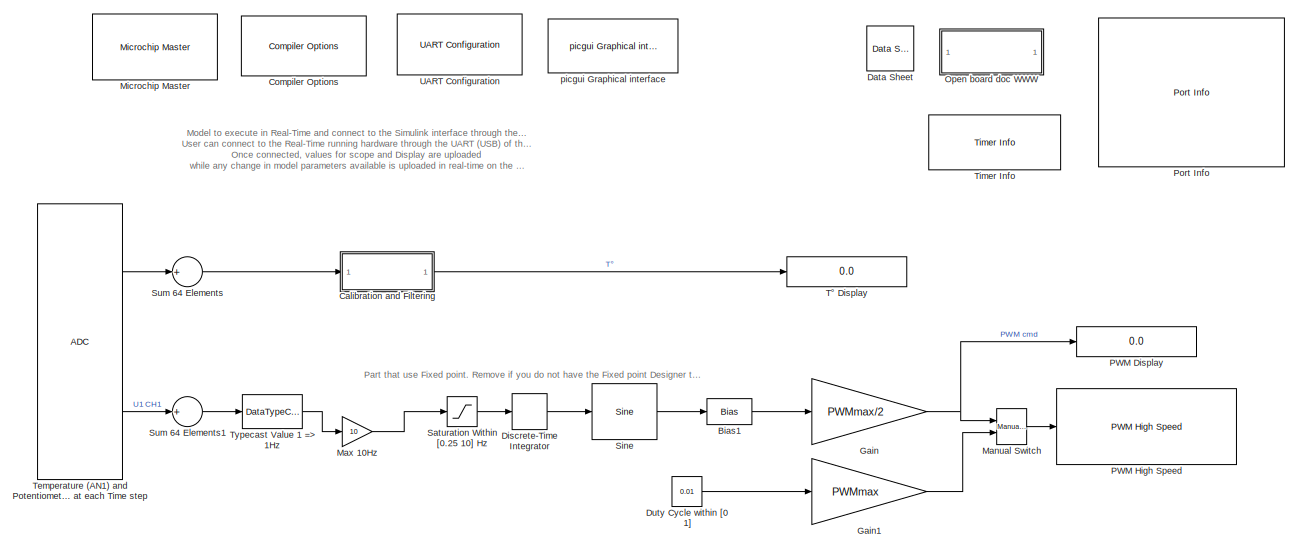
[diagram: root canvas - part 1/2, full width, top band]
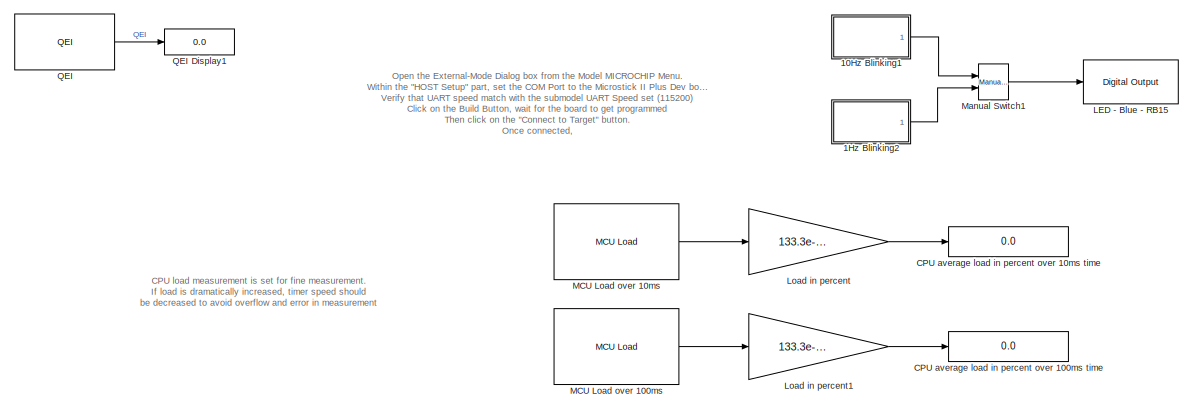
[diagram: root canvas - part 2/2, full width, bottom band]
MODEL slx_6a8ebd23b935
KIND model
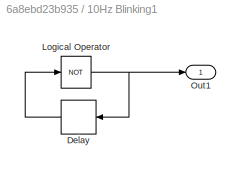
BLOCK [SubSystem] 10Hz Blinking1
  FunctionWithSeparateData = off
  MaskHideContents = off
  MinAlgLoopOccurrences = off
  Opaque = off
  Ports = [0, 1]
  PropExecContextOutsideSubsystem = off
  RTWSystemCode = Auto
  RequestExecContextInheritance = off
BLOCK [Delay] 10Hz Blinking1/Delay
  DelayLength = 1
  InitialCondition = 0
  InputPortMap = u0
  Ports = [1, 1]
  SampleTime = .05
BLOCK [Logic] 10Hz Blinking1/Logical Operator
  AllPortsSameDT = off
  Operator = NOT
  OutDataTypeStr = boolean
  Ports = [1, 1]
BLOCK [Outport] 10Hz Blinking1/Out1
  IconDisplay = Port number
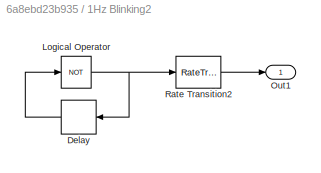
BLOCK [SubSystem] 1Hz Blinking2
  FunctionWithSeparateData = off
  MaskHideContents = off
  MinAlgLoopOccurrences = off
  Opaque = off
  Ports = [0, 1]
  PropExecContextOutsideSubsystem = off
  RTWSystemCode = Auto
  RequestExecContextInheritance = off
BLOCK [Delay] 1Hz Blinking2/Delay
  DelayLength = 1
  InitialCondition = 0
  InputPortMap = u0
  Ports = [1, 1]
  SampleTime = .5
BLOCK [Logic] 1Hz Blinking2/Logical Operator
  AllPortsSameDT = off
  Operator = NOT
  OutDataTypeStr = boolean
  Ports = [1, 1]
BLOCK [Outport] 1Hz Blinking2/Out1
  IconDisplay = Port number
BLOCK [RateTransition] 1Hz Blinking2/Rate Transition2
  Deterministic = off
  OutPortSampleTime = .05
BLOCK [Bias] Bias1
  Bias = 1
BLOCK [Display] CPU average load in percent over 100ms time
  Decimation = 1
  Format = long
  Lockdown = off
  Ports = [1]
BLOCK [Display] CPU average load in percent over 10ms time
  Decimation = 1
  Format = long
  Lockdown = off
  Ports = [1]
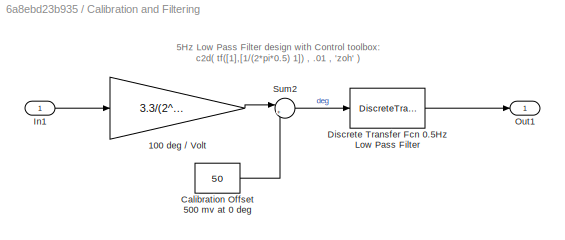
BLOCK [SubSystem] Calibration and Filtering
  FunctionWithSeparateData = off
  MaskHideContents = off
  MinAlgLoopOccurrences = off
  Opaque = off
  Ports = [1, 1]
  PropExecContextOutsideSubsystem = off
  RTWSystemCode = Auto
  RequestExecContextInheritance = off
BLOCK [Gain] Calibration and Filtering/100 deg // Volt 
  Gain = 3.3/(2^16) * 100
  OutDataTypeStr = single
  ParamDataTypeStr = Inherit: Inherit via internal rule
  SaturateOnIntegerOverflow = off
BLOCK [Constant] Calibration and Filtering/Calibration Offset 500 mv at 0 deg
  OutDataTypeStr = Inherit: Inherit via back propagation
  SampleTime = -1
  Value = 50
BLOCK [DiscreteTransferFcn] Calibration and Filtering/Discrete Transfer Fcn 0.5Hz Low Pass Filter
  Denominator = [1 -0.96907]
  InputPortMap = u0
  Numerator = [0.030928]
  Ports = [1, 1]
BLOCK [Inport] Calibration and Filtering/In1
  IconDisplay = Port number
BLOCK [Outport] Calibration and Filtering/Out1
  IconDisplay = Port number
BLOCK [Sum] Calibration and Filtering/Sum2
  AccumDataTypeStr = Inherit: Same as first input
  IconShape = round
  InputSameDT = off
  Inputs = |+-
  OutDataTypeStr = Inherit: Inherit via internal rule
  Ports = [2, 1]
  SaturateOnIntegerOverflow = off
BLOCK [Reference] Compiler Options  REF=MCHP_Blockset/System Configuration/Compiler Options
  AssemblyListing = on
  CMSIS_DSP = Dynamic Options
  CMSIS_DSP_TXT = Dynamic Options
  COMP_LIST = Dynamic Options
  COMP_LIST_TXT = xc16 - v1.61
  DEBUG_INFO = on
  DFP_LIST = Dynamic Options
  DFP_LIST_TXT = v 1.3.85
  HEAP_SIZE = 0
  LATEST_CMPLR = on
  MAGGREGATE = on
  MCHP_MASTERLINK = Microstick_II_PlusDevBoard_33EP128MC202_ExternalMode_R2012a/Microchip Master
  MCHP_MULTITHREAD_COMPILATION = on
  MCODE = is less than 32768 (faster)
  MCONST = in code memory
  MDATA = Can use all available memory
  MLARGEARRAY = off
  MPLAB_LINKLIB = default
  MPLAB_LINKLIB1 = default
  MSCALAR = Can use all available memory
  NO_EDS_WARN = on
  OMF = elf
  OPTIMIZATION_FLTO = on
  OPTIMIZATION_LEVEL = 2
  OPTIMIZATION_REORDER = off
  PRINT_STATISTICS = off
  PROCEDURAL_ABSTRACTION = off
  Ports = []
  Priority = 1
  ProduceHexOutput = on
  SourceBlock = MCHP_Blockset/System Configuration/Compiler Options
  UNROLL_LOOPS = off
  USE_64BIT_DOUBLE = off
  UseCustom_LinkerScript = off
BLOCK [Reference] Data Sheet  REF=MCHP_Blockset/System Info/Data Sheet
  AttributesFormatString = %<cpy_MCHP_Id>
  DOC_FileLastCheckTime = [0 0 0 0 0 0]
  DOC_MCHP_Id = 33FJ64MC802
  DOC_Type = datasheet
  MCHP_MASTERLINK = Microstick_II_PlusDevBoard_33EP128MC202_ExternalMode_R2012a/Microchip Master
  Ports = []
  SourceBlock = MCHP_Blockset/System Info/Data Sheet
  cpy_MCHP_Id = 33EP128MC202
BLOCK [DiscreteIntegrator] Discrete-Time Integrator
  ICPrevOutput = DiscIntNeverNeededParam
  ICPrevScaledInput = DiscIntNeverNeededParam
  IntegratorMethod = Accumulation: Forward Euler
  OutDataTypeStr = fixdt(0,16,16)
  Ports = [1, 1]
  SampleTime = .01
  gainval = 1
BLOCK [Constant] Duty Cycle within [0 1]
  OutDataTypeStr = fixdt(0,16,16)
  Value = 0.01
BLOCK [Gain] Gain
  Gain = PWMmax/2
  OutDataTypeStr = uint16
  ParamDataTypeStr = Inherit: Inherit via internal rule
  RndMeth = Simplest
  SaturateOnIntegerOverflow = off
BLOCK [Gain] Gain1
  Gain = PWMmax
  OutDataTypeStr = uint16
  ParamDataTypeStr = Inherit: Inherit via internal rule
  RndMeth = Simplest
  SaturateOnIntegerOverflow = off
BLOCK [Reference] LED - Blue - RB15  REF=MCHP_Blockset/Digital IO/Digital Output
  MCHP_MASTERLINK = Microstick_II_PlusDevBoard_33EP128MC202_ExternalMode_R2012a/Microchip Master
  ORDERING = None
  PACK = off
  PIN = [15]
  PORT = Dynamic Options
  PORT_TXT = B   [ 0 : 15 ]
  Ports = [1]
  READPREVIOUS = off
  SIMULTANEOUS = off
  SampleTime = -1
  SourceBlock = MCHP_Blockset/Digital IO/Digital Output
BLOCK [Gain] Load in percent
  Gain = 133.3e-9 / .01 * 100
  OutDataTypeStr = single
  OutMax = [20]
  OutMin = [0]
  ParamDataTypeStr = Inherit: Inherit from 'Gain'
  SaturateOnIntegerOverflow = off
BLOCK [Gain] Load in percent1
  Gain = 133.3e-9 / .1 * 100
  OutDataTypeStr = single
  OutMax = [20]
  OutMin = [0]
  ParamDataTypeStr = Inherit: Inherit from 'Gain'
  SaturateOnIntegerOverflow = off
BLOCK [Reference] MCU Load over 100ms  REF=MCHP_Blockset/Profiling/MCU Load
  Info = Timer 1:  Resol: 133.304768(ns)  -  Max: 8.73626(ms)
  MCHP_COMPILED_INFO = CompiledSampleTime= [0.10000000000000001   0 ];CompiledInportDataTypes=[ ];CompiledInportDataWidth=[];
  MCHP_MASTERLINK = Microstick_II_PlusDevBoard_33EP128MC202_ExternalMode_R2012a/Microchip Master
  MCHP_TIMER_REQUEST = {MCU_Load}{MCU_Load}21:5:0:0:[]:524288;
  MCHP_TIMER_RESULT = [1 65535 ]
  MCULoadMeasure = on
  MCULoadPin = Dynamic Options
  MCULoadPin_TXT = None
  Ports = [0, 1]
  SampleTime = .1
  SourceBlock = MCHP_Blockset/Profiling/MCU Load
  SourceType = MCU Load (Profile execution time)
  TIMER_Resolution = Dynamic Options
  TIMER_Resolution_TXT = Resol: 0.1333(us)  -  Max: 8.74(ms)
BLOCK [Reference] MCU Load over 10ms  REF=MCHP_Blockset/Profiling/MCU Load
  Info = Timer 1:  Resol: 133.304768(ns)  -  Max: 8.73626(ms)
  MCHP_COMPILED_INFO = CompiledSampleTime= [0.01   0 ];CompiledInportDataTypes=[ ];CompiledInportDataWidth=[];
  MCHP_MASTERLINK = Microstick_II_PlusDevBoard_33EP128MC202_ExternalMode_R2012a/Microchip Master
  MCHP_TIMER_REQUEST = {MCU_Load}{MCU_Load}21:5:0:0:[]:524288;
  MCHP_TIMER_RESULT = [1 65535 ]
  MCULoadMeasure = on
  MCULoadPin = Dynamic Options
  MCULoadPin_TXT = None
  Ports = [0, 1]
  SampleTime = .01
  SourceBlock = MCHP_Blockset/Profiling/MCU Load
  SourceType = MCU Load (Profile execution time)
  TIMER_Resolution = Dynamic Options
  TIMER_Resolution_TXT = Resol: 0.1333(us)  -  Max: 8.74(ms)
BLOCK [Reference] Manual Switch  REF=simulink/Signal
Routing/Manual Switch
  Ports = [2, 1]
  SourceBlock = simulink/Signal\nRouting/Manual Switch
  SourceType = Manual Switch
  action = 0
  sw = 1
  varsize = off
BLOCK [Reference] Manual Switch1  REF=simulink/Signal
Routing/Manual Switch
  Ports = [2, 1]
  SourceBlock = simulink/Signal\nRouting/Manual Switch
  SourceType = Manual Switch
  action = 0
  sw = 1
  varsize = off
BLOCK [Gain] Max 10Hz
  Gain = 10
  OutDataTypeStr = fixdt(0,16)
  OutMax = [20]
  OutMin = [0]
  ParamDataTypeStr = fixdt(1,16,8)
  SaturateOnIntegerOverflow = off
BLOCK [Reference] Microchip Master  REF=MCHP_Blockset/System Configuration/Microchip Master
  ACLKCON = Optimized for PWM resolution & ADC conversion speed
  ACLKCON_spd = Optimized for PWM resolution & ADC conversion speed
  ACTIV_PLL = on
  ACTIV_PLL_spd = on
  AIVTDIS = Disable Alternate Vector Table
  ALTADREF = Not used
  ALTCMPI = Not used
  ALTCVREF = Not used
  ALTI2C = I2C mapped to SDA1/SCL1 pins
  ALTI2C1 = I2C1 mapped to SDA1/SCL1 pins
  ALTI2C2 = I2C2 mapped to SDA2/SCL2 pins
  ALTI2C3 = I2C3 mapped to SDA3/SCL3 pins
  ALTPMP = Not used
  ALTQIO = QEA1; QEB1; INDX1 are selected as inputs to QEI1
  ALTRB6 = Not used
  ALTSS1 = SS1A is selected as the I/O pin for SPI1
  ALTVREF = Not used
  APL = Aux Flash Code protect is disabled
  APLK = Aux Flash Write Protection or Code Protection is Enabled
  ATMOD8 = Not used
  AWRP = Aux Flash may be written
  BACKBUG = Not used
  BISTDIS = mBIST on reset feature disabled
  BKBUG = Not used
  BODENV = 2.7V
  BOOTISA = Boot code and Exception code is MIPS32
  BOREN = Disable
  BOREN0 = Enabled
  BOREN1 = Not used
  BORLVL = Not used
  BORSEL = BOR trip voltage 2.1v (Non-OPAMP deviced operation)
  BORV = Not used
  BSEN = No Boot Segment
  BSEQ = Not used
  BSLIM = Not used
  BSS = No Boot program Flash segment
  BSS2 = No Boot Segment
  BSSO = Not used
  BTMODE = Not used
  BTSWP = BOOTSWP instruction is disabled
  BUSYFLAG = Dynamic Options
  BUSYFLAG_TXT = None
  BWP = Not used
  BWRP = Boot Segment may be written
  CFGAN14 = Not used
  CFGAN15 = Not used
  CMPPOL0 = Hysteresis is applied to falling edge
  CMPPOL1 = Hysteresis is applied to falling edge
  COE = Not used
  CP = Protection Disabled
  CPRA0 = Master core owns pin.
  CPRA1 = Master core owns pin.
  CPRA2 = Master core owns pin.
  CPRA3 = Master core owns pin.
  CPRA4 = Master core owns pin.
  CPRB0 = Master core owns pin.
  CPRB1 = Master core owns pin.
  CPRB10 = Master core owns pin.
  CPRB11 = Master core owns pin.
  CPRB12 = Master core owns pin.
  CPRB13 = Master core owns pin.
  CPRB14 = Master core owns pin.
  CPRB15 = Master core owns pin.
  CPRB2 = Master core owns pin.
  CPRB3 = Master core owns pin.
  CPRB4 = Master core owns pin.
  CPRB5 = Master core owns pin.
  CPRB6 = Master core owns pin.
  CPRB7 = Master core owns pin.
  CPRB8 = Master core owns pin.
  CPRB9 = Master core owns pin.
  CPRC0 = Master core owns pin.
  CPRC1 = Master core owns pin.
  CPRC10 = Master core owns pin.
  CPRC11 = Master core owns pin.
  CPRC12 = Master core owns pin.
  CPRC13 = Master core owns pin.
  CPRC14 = Master core owns pin.
  CPRC15 = Master core owns pin.
  CPRC2 = Master core owns pin.
  CPRC3 = Master core owns pin.
  CPRC4 = Master core owns pin.
  CPRC5 = Master core owns pin.
  CPRC6 = Master core owns pin.
  CPRC7 = Master core owns pin.
  CPRC8 = Master core owns pin.
  CPRC9 = Master core owns pin.
  CPRD0 = Master core owns pin.
  CPRD1 = Master core owns pin.
  CPRD10 = Master core owns pin.
  CPRD11 = Master core owns pin.
  CPRD12 = Master core owns pin.
  CPRD13 = Master core owns pin.
  CPRD14 = Master core owns pin.
  CPRD15 = Master core owns pin.
  CPRD2 = Master core owns pin.
  CPRD3 = Master core owns pin.
  CPRD4 = Master core owns pin.
  CPRD5 = Master core owns pin.
  CPRD6 = Master core owns pin.
  CPRD7 = Master core owns pin.
  CPRD8 = Master core owns pin.
  CPRD9 = Master core owns pin.
  CPRE0 = Master core owns pin.
  CPRE1 = Master core owns pin.
  CPRE10 = Master core owns pin.
  CPRE11 = Master core owns pin.
  CPRE12 = Master core owns pin.
  CPRE13 = Master core owns pin.
  CPRE14 = Master core owns pin.
  CPRE15 = Master core owns pin.
  CPRE2 = Master core owns pin.
  CPRE3 = Master core owns pin.
  CPRE4 = Master core owns pin.
  CPRE5 = Master core owns pin.
  CPRE6 = Master core owns pin.
  CPRE7 = Master core owns pin.
  CPRE8 = Master core owns pin.
  CPRE9 = Master core owns pin.
  CSEQ = Not used
  CSS = No Protection (other than CWRP)
  CTXT1 = Not Assigned
  CTXT2 = Not Assigned
  CTXT3 = Not Assigned
  CTXT4 = Not Assigned
  CWRP = Configuration Segment may be written
  DBCC = No Cross Connection between DAC outputs
  DBGPER = Allow CPU access to all permission regions
  DEBUG = Debugger is disabled
  DFMCY = Not used
  DISUVREG = Not used
  DMTCNT = 2^31 (2147483648)
  DMTCNTH = Not used
  DMTCNTL = Not used
  DMTDIS = Dead Man Timer is Disabled and can be enabled by software
  DMTEN = Dead Man Timer is Enabled and cannot be disabled by software
  DMTINTV = Window/Interval value is 127/128 counter value
  DMTIVT = Not used
  DMTIVTH = Not used
  DMTIVTL = Not used
  DSBOREN = Enable ZPBOR during Deep Sleep Mode
  DSLPBOR = Not used
  DSSWEN = Not used
  DSWDTEN = Enable DSWDT during Deep Sleep Mode
  DSWDTOSC = Select LPRC as DSWDT Reference clock
  DSWDTPS = 1:2^36
  EBS = No Boot EEPROM
  EJTAGBEN = Normal EJTAG functionality
  ESS = No Segment Data EEPROM
  EXTDDRSIZE = Not used
  FCANIO = Not used
  FCKSM = Clock switching is enabled;Fail-safe Clock Monitor is disabled
  FCKSMEN = Sw Disabled; Mon Disabled
  FDBGWP = Not used
  FDMTEN = Deadman Timer is disabled
  FDSEN = Enable DSEN bit in DSCON
  FECCCON = ECC and Dynamic ECC are disabled (ECCCON bits are writable)
  FETHIO = Default Ethernet I/O
  FMIIEN = MII Enabled
  FNOSC = Internal Fast RC (FRC)
  FOS = Internal Fast RC
  FOSFPR = HS3 w/PLL 16x
  FPBDIV = Not used
  FPLLICLK = FRC is input to the System PLL
  FPLLIDIV = 8x Divider
  FPLLMUL = Not used
  FPLLMULT = PLL Multiply by 128
  FPLLODIV = 32x Divider
  FPLLRNG = 34-68 MHz Input
  FPR = ECIO w/ PLL 16x
  FPWRT = 128ms
  FRANGE = High Range
  FSLEEP = Flash is powered down when the device is in Sleep mode
  FSOSCEN = Disable Secondary Oscillator
  FSRSSEL = Not used
  FUSBIDIO = Controlled by the USB Module
  FUSBIDIO1 = USBID pin is controlled by the USB1 module
  FUSBIDIO2 = USBID pin is controlled by the USB2 module
  FVBUSIO1 = VBUSON pin is controlled by the USB1 module
  FVBUSIO2 = VBUSON pin is controlled by the USB2 module
  FVBUSONIO = Not used
  FWDTEN = Disable
  FWDTWINSZ = Window size is 25%
  FWPSA = 1:512
  FWPSA0 = 1:128
  FWPSB = 1:16
  GCP = General Segment Code protect is Disabled
  GSS = User program memory is not code-protected
  GSS0 = Not used
  GSSK = General Segment Write Protection or Code Protection is Enabled
  GWRP = General Segment may be written
  HPOL = PWM module high side output pins have active-high output polarity
  HSAEN = Mailbox data flow control handshake protocol block disabled.
  HSBEN = Mailbox data flow control handshake protocol block disabled.
  HSCEN = Mailbox data flow control handshake protocol block disabled.
  HSDEN = Mailbox data flow control handshake protocol block disabled.
  HSEEN = Mailbox data flow control handshake protocol block disabled.
  HSFEN = Mailbox data flow control handshake protocol block disabled.
  HSGEN = Mailbox data flow control handshake protocol block disabled.
  HSHEN = Mailbox data flow control handshake protocol block disabled.
  HYST0 = 45 mV Hysteresis
  HYST1 = 45 mV Hysteresis
  I2C1SEL = Not used
  I2C2SEL = Not used
  IBSEQ = Not used
  ICESEL = Communicate on PGEC1/PGED1
  ICS = Communicate on PGEC1 and PGED1
  IESO = Start up with FRC; then switch
  INT_PRIORITY_DMA = 0
  IOL1WAY = Allow multiple reconfigurations
  JTAGEN = Disable
  LPCFG = Not used
  LPOL = PWM module low side output pins have active-high output polarity
  LPRCSEL = Not used
  LVRCFG = Not used
  MAXTEMP = Not used
  MBXHSA = MSIxMBXD15 assigned to mailbox handshake protocol block A
  MBXHSB = MSIxMBXD15 assigned to mailbox handshake protocol block B
  MBXHSC = MSIxMBXD15 assigned to mailbox handshake protocol block C
  MBXHSD = MSIxMBXD15 assigned to mailbox handshake protocol block D
  MBXHSE = MSIxMBXD15 assigned to mailbox handshake protocol block E
  MBXHSF = MSIxMBXD15 assigned to mailbox handshake protocol block F
  MBXHSG = MSIxMBXD15 assigned to mailbox handshake protocol block G
  MBXHSH = MSIxMBXD15 assigned to mailbox handshake protocol block H
  MBXM0 = Mailbox register configured for Master data read (Slave to Master data transfer)
  MBXM1 = Mailbox register configured for Master data read (Slave to Master data transfer)
  MBXM10 = Mailbox register configured for Master data read (Slave to Master data transfer)
  MBXM11 = Mailbox register configured for Master data read (Slave to Master data transfer)
  MBXM12 = Mailbox register configured for Master data read (Slave to Master data transfer)
  MBXM13 = Mailbox register configured for Master data read (Slave to Master data transfer)
  MBXM14 = Mailbox register configured for Master data read (Slave to Master data transfer)
  MBXM15 = Mailbox register configured for Master data read (Slave to Master data transfer)
  MBXM2 = Mailbox register configured for Master data read (Slave to Master data transfer)
  MBXM3 = Mailbox register configured for Master data read (Slave to Master data transfer)
  MBXM4 = Mailbox register configured for Master data read (Slave to Master data transfer)
  MBXM5 = Mailbox register configured for Master data read (Slave to Master data transfer)
  MBXM6 = Mailbox register configured for Master data read (Slave to Master data transfer)
  MBXM7 = Mailbox register configured for Master data read (Slave to Master data transfer)
  MBXM8 = Mailbox register configured for Master data read (Slave to Master data transfer)
  MBXM9 = Mailbox register configured for Master data read (Slave to Master data transfer)
  MCA = Not used
  MCHPVAR = MCHP.fcy.MIPS=MCHP_Fun.Hex2num('418C9DC9C9249248');MCHP.fcy.SYSCLK=MCHP_Fun.Hex2num('418C9DC9C9249248');MCHP.fcy.ADC=MCHP_Fun.Hex2num('418C9DC9C9249248');MCHP.fcy.Comparator=MCHP_Fun.Hex2num('418C9DC9C9249248');MCHP.fcy.I2C=MCHP_Fun.Hex2num('418C9DC9C9249248');MCHP.fcy.SPI=MCHP_Fun.Hex2num('418C9DC9C9249248');MCHP.fcy.UART=MCHP_Fun.Hex2num('418C9DC9C9249248');MCHP.fcy.Timers=MCHP_Fun.Hex2num('418C...<+13731ch>
  MCHP_CRC = 15826907
  MCHP_PLLRegisters = [5    226  16387     -1     -1]
  MCHP_TIMER_RESULT = [ ]
  MCLRE = Enabled
  MIPS = 60.012857142857136 * 1e6
  MIPS_DESIRED = 60e6
  MIPS_DESIRED_spd = 60e6
  NOBTSWP = BOOTSWP instruction is disabled
  ON = Not used
  OSCILLATOR_SELECT = Internal Fast RC (FRC)
  OSCILLATOR_SELECT_spd = Internal Fast RC (FRC)
  OSCIOFCN = Not used
  OSCIOFNC = general purpose digital I/O pin
  PGL1WAY = Allow only one reconfiguration
  PICREF = 33EP128MC202
  PLL96MHZ = Not used
  PLLDIV = Not used
  PLLKEN = Clock switch to PLL source will wait until the PLL lock signal is valid.
  PLLSS = Not used
  PLL_96MHZ = Not used
  PMDL1WAY = Allow only one reconfiguration
  POSCAGC = Automatic Gain Control for Oscillator
  POSCAGCDLY = Settling time = 25ms x AGCRNG
  POSCAGCRNG = Range 1x
  POSCBOOST = Boost the kick start of the oscillator
  POSCFGAIN = Gain is G3
  POSCFREQ = Not used
  POSCGAIN = 2x gain setting
  POSCMD = Primary Oscillator Disabled
  POSCMOD = Primary Oscillator Disabled
  POWERSAVE = off
  PWMLOCK = PWM registers may be written without key sequence
  PWMPIN = PWM module pins controlled by PORT register at device Reset
  PWP = Not used
  PWRTEN = Not used
  Ports = []
  Priority = 1
  QUARTZ = 7.37e+06
  QUARTZ_spd = 7.37e+06
  RBS = No Boot RAM
  RCLKSEL = Always use LPRC
  RES = Not used
  RES1 = Not used
  RES2 = Not used
  RESERVED1 = Not used
  RETCFG = Not used
  RSS = No Secure RAM
  RSTPRI = Device will obtain reset instruction from Primary flash
  RTCBAT = Not used
  RTCOSC = Not used
  RWDTPS = 1:1048576
  S1ALTI2C1 = I2C1 mapped to SDA1/SCL1 pins
  S1BACKBUG = Not used
  S1BISTDIS = Slave BIST on reset feature disabled
  S1BSSO = Not used
  S1CTXT1 = Not Assigned
  S1CTXT2 = Not Assigned
  S1CTXT3 = Not Assigned
  S1CTXT4 = Not Assigned
  S1DEBUG = Not used
  S1DMTCNTH = Not used
  S1DMTCNTL = Not used
  S1DMTDIS = Slave Dead Man Timer is Disabled and can be enabled by software
  S1DMTIVTH = Not used
  S1DMTIVTL = Not used
  S1FCKSM = Both Clock switching and Fail-safe Clock Monitor are disabled
  S1FNOSC = Internal Fast RC (FRC) Oscillator with postscaler
  S1FWDTEN = Disable
  S1ICS = Communicate on PGC1 and PGD1
  S1IESO = Start up with FRC; then switch
  S1IOL1WAY = Not used
  S1ISOLAT = The slave can operate (in debug mode) even if the SLVEN bit in the MSI is zero.
  S1MSRE = The master software oriented RESET events (RESET Op-Code; Watchdog timeout; TRAP reset; illegalInstruction) will also cause the slave subsystem to reset.
  S1NOBTSWP = BOOTSWP instruction is disabled
  S1OSCIOFNC = OSC2 is clock output
  S1PLLKEN = S1PLLKEN_ON
  S1RCLKSEL = Always use LPRC
  S1RWDTPS = 1:1048576
  S1SPI1PIN = Slave SPI1 uses I/O remap (PPS) pins
  S1SSRE = Slave generated resets will reset the Slave Enable Bit in the MSI module
  S1SWDTPS = 1:1048576
  S1WDTWIN = WDT Window is 25% of WDT period
  S1WINDIS = Watchdog Timer operates in Non-Window mode
  SEQNUM = Not used
  SMB3EN = SMBus 3.0 input levels
  SMBEN = SMBus input threshold is enabled
  SMCLR = MCLR pin generates a normal system Reset
  SOSCBOOST = Boost the kick start of the oscillator
  SOSCGAIN = 2x gain setting
  SOSCSEL = Not used
  SOSCSRC = Not used
  SPI2PIN = SPI2 uses I/O remap (PPS) pins
  SSS = No Secure Segment
  SWDTPS = 1:1048576
  SWRP = Secure segment may be written
  SourceBlock = MCHP_Blockset/System Configuration/Microchip Master
  TEMP = Not used
  TIMESTEP_REF = ADC  ( 0.01s + [-0.032088%] ==> 0.0099968s )
  TRCEN = Trace features in the CPU are enabled
  TSEQ = Not used
  UPLLEN = USB PLL Disabled
  UPLLFSEL = USB PLL input is 24 MHz
  UPLLIDIV = Not used
  USERID = Not used
  VBATBOREN = Enable ZPBOR during VBAT Mode
  VBTBOR = Not used
  WDT = Disable
  WDTCLK = Not used
  WDTCMX = Not used
  WDTEN = Disable
  WDTPOST = 1:32768
  WDTPRE = 1:128
  WDTPS = 1:32768
  WDTSPGM = WDT stops during Flash programming
  WDTWIN = WDT Window is 25% of WDT period
  WINDIS = Watchdog Timer in Non-Window mode
  WPCFG = Not used
  WPDIS = Not used
  WPEND = Not used
  WPFP = Not used
  WUTSEL = Not used
  WWDTEN = Non-Window mode
  XTBST = Boost the kick-start
  XTCFG = 24-32 MHz crystals
  nSEQNUM = Not used
BLOCK [SubSystem] Open board doc WWW
  FunctionWithSeparateData = off
  MaskDisplay = disp('Microstick Plus\nDev Board');
  MaskHideContents = off
  MaskIconFrame = on
  MaskIconOpaque = on
  MaskIconRotate = none
  MaskIconUnits = autoscale
  MaskPortRotate = default
  MinAlgLoopOccurrences = off
  Opaque = off
  OpenFcn = web('www.microchip.com/www.microchip.com/en556208','-browser');\npause(1);\nweb('www.microchip.com/TCAD0014178791','-browser');
  Ports = []
  PropExecContextOutsideSubsystem = off
  RTWSystemCode = Auto
  RequestExecContextInheritance = off
BLOCK [Display] PWM Display
  Decimation = 1
  Format = long
  Lockdown = off
  Ports = [1]
BLOCK [Reference] PWM High Speed  REF=MCHP_Blockset/PWM IO/PWM High Speed
  ADC_VARTRIG = {PWM Primary Special Event Trigger;6}
  ChkCurBlkOut = [1  0  0  0  0  0  0]
  ChkCurBlkOutTime = [1  0  1  0  0  0  0]
  InitDC = { '0','0','0.0003','50','50','50','50';'0.001','0.001','0.001','50','50','50','50'}
  InitP2 = { '0.005','0.001','0.001','0.001','0.001','0.001','0.001';'0.001','0.001','0.001','0.001','0.001','0.001','0.001'}
  InitPh = { '0','0','0','0.001','0.001','0.001','0.001';'0','0','0','0.001','0.001','0.001','0.001'}
  MCHP_MASTERLINK = Microstick_II_PlusDevBoard_33EP128MC202_ExternalMode_R2012a/Microchip Master
  MCHP_PORT = {PWM2H}{PWM2H}4:4:B12;
  MCHP_VERSION = v3.38
  ORDERING = None
  Parameter50 = 0
  Ports = [1]
  S_DWORK_Size = []
  S_DWORK_Type = []
  S_INPUT = [5]
  S_INPUT_Size = [1]
  S_OUTPUT = []
  S_OUTPUT_Size = []
  SampleTime = -1
  SourceBlock = MCHP_Blockset/PWM IO/PWM High Speed
  UserDataPersistent = on
  chk1 = [0  1  0  0  0]
  chkDC = [1  1  1  1  1  1  1 ; 0  0  0  1  1  1  1]
  chkFltBlkOut = [0  0  0  0  0  0  0]
  chkHL1 = [0  1  0  1  1  1  1 ; 0  0  0  1  1  1  1]
  chkP2 = [0  1  0  1  1  1  1 ; 1  0  0  1  1  1  1]
  chkPh = [0  0  0  1  1  1  1 ; 0  0  0  1  1  1  1]
  chkSEvTrigx = [0  0  1  1  1  1  1]
  edAltDTRx = { '1e-05','0.0001','1e-05','1e-05','1e-05','1e-05','1e-05'}
  edDTRx = { '0.02','1e-05','0.001','1e-05','1e-05','1e-05','1e-05'}
  edLEB = { '100e-9','50e-9','150e-9','50e-9','50e-9','50e-9','50e-9'}
  edSEvTrigx = { '0.0001','-1','-1','-1','-1','-1','-1'}
  evalin_ws = PWMmax = 37508;PWM2max = 37508;
  maxP1 = { '0.005','0.001','0.001','0.001','0.001','0.001','0.001';'0.001','0.001','1e-06','0.001','0.001','0.001','0.001'}
  pop1 = [1]
  popBLANKSEL = [1  1  1  1  1  1  1]
  popBPHHBPHL = [1  1  1  1  1  1  1]
  popBPLHBPLL = [1  1  1  1  1  1  1]
  popCurActiveH = [1  1  1  1  1  1  1]
  popCurEnabled = [1  1  1  1  1  1  1]
  popCurForceH = [2  1  2  1  1  1  1]
  popCurForceL = [2  1  2  1  1  1  1]
  popCurPin = [33  31  32  16  16  16  16]
  popDT = [3  3  3  3  3  3  3]
  popFLTLEBEN_CLLEBEN = [1  1  1  1  1  1  1]
  popFlt = [1  1  1  1  1  1  1]
  popFltActivH = [1  2  1  1  1  1  1]
  popFltForceH = [2  2  2  2  2  2  2]
  popFltForceL = [1  1  1  1  1  1  1]
  popFltPin = [24  25  20   4   4   4   4]
  popFltPinRp = [1  1  1  1  1  1  1]
  popIndepFaultMode = [1  1  1  1  1  1  1]
  popPHR_PHF = [2  1  1  1  1  1  1]
  popPLR_PLF = [3  1  1  1  1  1  1]
BLOCK [Reference] Port Info  REF=MCHP_Blockset/System Info/Port Info
  MCHP_MASTERLINK = Microstick_II_PlusDevBoard_33EP128MC202_ExternalMode_R2012a/Microchip Master
  Ports = []
  SourceBlock = MCHP_Blockset/System Info/Port Info
BLOCK [Reference] QEI  REF=MCHP_Blockset/QEI/QEI
  FILTER_CutOffFreq = 100e3
  FILTREN = on
  HOMPOL = on
  IDXPOL = off
  IMV = QEA = 1 and QEB = 0
  IMV_x2 = QEA = 1
  INDXxCNT_Output = is not an output
  INTxHLD_Output = is not an output
  MCHP_MASTERLINK = Microstick_II_PlusDevBoard_33EP128MC202_ExternalMode_R2012a/Microchip Master
  MCHP_PORT = {QEI1 A}{QEIA1}5:0:P38;{QEI1 B}{QEIB1}5:0:P39;
  MaxPeriod = 1e-3
  PCIIRQ = off
  PIMOD_mode = position is cyclique between user defined boundaries
  PIMOD_modeB = Never reset position
  PIMOD_reset = on next INDEX event
  PIN_CCMP = Dynamic Options
  PIN_CCMP_TXT = A4 / P20 / Pin[12]
  PIN_HOME = Dynamic Options
  PIN_HOME_TXT = A4 / P20 / Pin[12]
  PIN_INDEX = Dynamic Options
  PIN_INDEX_TXT = A4 / P20 / Pin[12]
  PIN_QEA = Dynamic Options
  PIN_QEA_TXT = B6 / P38 / Pin[15]
  PIN_QEB = Dynamic Options
  PIN_QEB_TXT = B7 / P39 / Pin[16]
  POSxCNT_Output = is a 16 bits unsigned block output
  Ports = [0, 1]
  QEAPOL = off
  QEBPOL = off
  QEI_IntPri = 5
  QEI_MODE = Quadrature Encoder
  QEI_PulseCountDir = Down
  QEI_REF = 1
  QEI_x2mode = off
  QEIxIC = 52
  QEIxLEC_GEC = [0 256]
  QFDIV_popup = Dynamic Options
  QFDIV_popup_TXT = 78.14 kHz
  RESET_Input = off
  SWPAB = off
  SampleTime = .01
  SourceBlock = MCHP_Blockset/QEI/QEI
  SourceType = Output Driver for Quadrature Encoder Interface (QEI) peripheral
  UserDataPersistent = on
  VELxCNT_Output = is not an output
BLOCK [Display] QEI Display1
  Decimation = 1
  Format = long
  Lockdown = off
  Ports = [1]
BLOCK [Saturate] Saturation Within [0.25 10] Hz
  InputPortMap = u0
  LowerLimit = 0.25 * .01
  Ports = [1, 1]
  UpperLimit = 10 * .01
BLOCK [Reference] Sine  REF=simulink/Lookup
Tables/Sine
  Formula = sin(2*pi*u)
  NumDataPoints = (2^5)+1
  OutputWordLength = 16
  Ports = [1, 1]
  SourceBlock = simulink/Lookup\nTables/Sine
  SourceType = Sine and Cosine
BLOCK [Sum] Sum 64 Elements
  InputSameDT = off
  Inputs = +
  OutDataTypeStr = Inherit: Inherit via internal rule
  Ports = [1, 1]
  SaturateOnIntegerOverflow = off
BLOCK [Sum] Sum 64 Elements1
  InputSameDT = off
  Inputs = +
  OutDataTypeStr = Inherit: Inherit via internal rule
  Ports = [1, 1]
  SaturateOnIntegerOverflow = off
BLOCK [Reference] Temperature (AN1) and Potentiometer (AN0) 64 X 2 Sample&Convert at each Time step  REF=MCHP_Blockset/Analog IO/ADC
  ADC_DMA_CHANNEL = use DMA Channel 0
  ADC_R = < 5    kOhm
  ADC_REF = 1
  ADC_TIMING = [0.0099967911637982368]
  ADxCSS = [1]
  FORM = 0000 dddd dddd dddd ==> Unsigned integer
  Info = Total Time for Sample & Conversion : 0.0099968s including 6.9019e-05s (x 64) sample time. Difference with time step is : 3.2088e-06s
  MCHP_MASTERLINK = Microstick_II_PlusDevBoard_33EP128MC202_ExternalMode_R2012a/Microchip Master
  MCHP_PORT = {Analog Input 0}{AN0}15:2:A0;{Analog Input 1}{AN1}15:2:A1;
  MUXA_CH0N = off
  MUXA_CH123 = Dynamic Options
  MUXA_CH123_TXT = AN0 : AN1 : AN2
  MUXB_CH0 = AN1
  MUXB_CH0N = on
  MUXB_CH123 = Dynamic Options
  MUXB_CH123_TXT = AN0 : AN1 : AN2
  Mode = 10 bits (allows exact simultaneous sampling)
  Ports = [0, 2]
  Priority = 5
  SIMULTANEOUS = Simultaneously on all Channels
  SSRC_SSRCG = Dynamic Options
  SSRC_SSRCG_TXT = 6
  SampleTime = 0.01
  SequenceRepeat = 64
  SequenceTiming = are stretcheded to fit exactly previous time step
  SourceBlock = MCHP_Blockset/Analog IO/ADC
  Trig_TimeStep = with each update of the ADC block output
  Update_BlockOutput = After all trig and conversion sequence
  nSAMPLECHANNELS = CH0 : CH1
  nSAMPLECHANNELS_12bits = CH0 only
BLOCK [Reference] Timer Info  REF=MCHP_Blockset/System Info/Timer Info
  MCHP_MASTERLINK = Microstick_II_PlusDevBoard_33EP128MC202_ExternalMode_R2012a/Microchip Master
  Ports = []
  SourceBlock = MCHP_Blockset/System Info/Timer Info
BLOCK [DataTypeConversion] Typecast Value 1 => 1Hz
  ConvertRealWorld = Stored Integer (SI)
  OutDataTypeStr = fixdt(0,16,2^-16 * .01,0)
  RndMeth = Floor
  SaturateOnIntegerOverflow = off
BLOCK [Display] T° Display
  Decimation = 1
  Format = long
  Lockdown = off
  Ports = [1]
BLOCK [Reference] UART Configuration  REF=MCHP_Blockset/BUS UART/UART Configuration
  ALT_IO = on
  BAUD_Choice = Dynamic Options
  BAUD_Choice_IR = Dynamic Options
  BAUD_Choice_IR_InitSeq = Dynamic Options
  BAUD_Choice_IR_InitSeq_TXT = 0
  BAUD_Choice_IR_TXT = []
  BAUD_Choice_InitSeq = Dynamic Options
  BAUD_Choice_InitSeq_TXT = 110         [+0.00%]
  BAUD_Choice_TXT = 115200         [+0.18%]
  BAUD_Custom = 115200
  BAUD_Custom_InitSeq = 0
  DuplexMode = Full duplex (default)
  FlowControl = None
  INT_PRIORITY = 0
  IRDA = off
  InitSequence = 'Hello World'
  InitSequence_chkbox = off
  MCHP_COM_ExtPil = on
  MCHP_MASTERLINK = Microstick_II_PlusDevBoard_33EP128MC202_ExternalMode_R2012a/Microchip Master
  MCHP_PORT = {UART1  Rx}{U1RX}3:0:P43;{UART1  Tx}{U1TX}3:1:P42;
  PIN_CTS = Dynamic Options
  PIN_CTS_TXT = B0 / P32 / Pin[4]
  PIN_RTS = Dynamic Options
  PIN_RTS_TXT = A4 / P20 / Pin[12]
  PIN_RX = Dynamic Options
  PIN_RXTX_Inv = off
  PIN_RX_Inv = off
  PIN_RX_TXT = B11 / P43 / Pin[22]
  PIN_TX = Dynamic Options
  PIN_TX_Inv = off
  PIN_TX_TXT = B10 / P42 / Pin[21]
  ParityBit = No parity (default)
  Ports = []
  RX_CIRCULAR_SIZE = 128
  RX_DMA_CHANNEL = 0
  RX_DMA_SIZE = 0
  RX_IMPLEMENTATION = Circular Buffer
  RX_IMPLEMENTATION_default = Circular Buffer
  RX_INT_PRIORITY = 6
  RX_INT_WHEN = receive 1 character
  SourceBlock = MCHP_Blockset/BUS UART/UART Configuration
  SourceType = Configuration for UART peripheral
  StopBit = 1 stop bit (default)
  TX_CIRCULAR_SIZE = 128
  TX_DMA_CHANNEL = 0   (Lowest Priority)
  TX_DMA_SIZE = []
  TX_IMPLEMENTATION = Circular Buffer
  TX_IMPLEMENTATION_default = Circular Buffer
  TX_INTERRUPT_PROTECTION = Do not send on conflict (default)
  TX_INTERRUPT_PROTECTION_default = Do not send on conflict (default)
  TX_INT_PRIORITY = 5
  TX_INT_WHEN = is empty
  TX_INT_WHEN_default = is empty & last char is sent
  TX_TASK_PROTECTION = Delay tasks (default)
  UART_REF = 1
BLOCK [Reference] picgui Graphical interface  REF=MCHP_Blockset/BUS UART/picgui
Graphical interface
  Nothing = 0
  Ports = []
  SourceBlock = MCHP_Blockset/BUS UART/picgui\nGraphical interface
ANNOTATION (root): CPU load measurement is set for fine measurement. If load is dramatically increased, timer speed should be decreased to avoid overflow and error in measurement
ANNOTATION (root): Model to execute in Real-Time and connect to the Simulink interface through the External-Mode interface.. User can connect to the Real-Time running hardware through the UART (USB) of the board. Once connected, values for scope and Display are uploaded while any change in model parameters available is uploaded in real-time on the target.
ANNOTATION (root): Open the External-Mode Dialog box from the Model MICROCHIP Menu. Within the "HOST Setup" part, set the COM Port to the Microstick II Plus Dev board UART (through USB) Verify that UART speed match with the submodel UART Speed set (115200) Click on the Build Button, wait for the board to get programmed Then click on the "Connect to Target" button. Once connected, - you can see uploaded values withi ...<+106ch>
ANNOTATION (root): Part that use Fixed point. Remove if you do not have the Fixed point Designer toolbox
ANNOTATION Calibration and Filtering: 5Hz Low Pass Filter design with Control toolbox: c2d( tf([1],[1/(2*pi*0.5) 1]) , .01 , 'zoh' )
LINE 10Hz Blinking1/Delay:1 -> 10Hz Blinking1/Logical Operator:1
NET 10Hz Blinking1/Logical Operator:1 -> 10Hz Blinking1/Delay:1, 10Hz Blinking1/Out1:1
LINE 10Hz Blinking1:1 -> Manual Switch1:1
LINE 1Hz Blinking2/Delay:1 -> 1Hz Blinking2/Logical Operator:1
NET 1Hz Blinking2/Logical Operator:1 -> 1Hz Blinking2/Delay:1, 1Hz Blinking2/Rate Transition2:1
LINE 1Hz Blinking2/Rate Transition2:1 -> 1Hz Blinking2/Out1:1
LINE 1Hz Blinking2:1 -> Manual Switch1:2
LINE Bias1:1 -> Gain:1
LINE Calibration and Filtering/100 deg // Volt :1 -> Calibration and Filtering/Sum2:1
LINE Calibration and Filtering/Calibration Offset 500 mv at 0 deg:1 -> Calibration and Filtering/Sum2:2
LINE Calibration and Filtering/Discrete Transfer Fcn 0.5Hz Low Pass Filter:1 -> Calibration and Filtering/Out1:1
LINE Calibration and Filtering/In1:1 -> Calibration and Filtering/100 deg // Volt :1
LINE Calibration and Filtering/Sum2:1 -> Calibration and Filtering/Discrete Transfer Fcn 0.5Hz Low Pass Filter:1
LINE Calibration and Filtering:1 -> T° Display:1
LINE Discrete-Time Integrator:1 -> Sine:1
LINE Duty Cycle within [0 1]:1 -> Gain1:1
LINE Gain1:1 -> Manual Switch:2
NET Gain:1 -> Manual Switch:1, PWM Display:1
LINE Load in percent1:1 -> CPU average load in percent over 100ms time:1
LINE Load in percent:1 -> CPU average load in percent over 10ms time:1
LINE MCU Load over 100ms:1 -> Load in percent1:1
LINE MCU Load over 10ms:1 -> Load in percent:1
LINE Manual Switch1:1 -> LED - Blue - RB15:1
LINE Manual Switch:1 -> PWM High Speed:1
LINE Max 10Hz:1 -> Saturation Within [0.25 10] Hz:1
LINE QEI:1 -> QEI Display1:1
LINE Saturation Within [0.25 10] Hz:1 -> Discrete-Time Integrator:1
LINE Sine:1 -> Bias1:1
LINE Sum 64 Elements1:1 -> Typecast Value 1 => 1Hz:1
LINE Sum 64 Elements:1 -> Calibration and Filtering:1
LINE Temperature (AN1) and Potentiometer (AN0) 64 X 2 Sample&Convert at each Time step:1 -> Sum 64 Elements:1
LINE Temperature (AN1) and Potentiometer (AN0) 64 X 2 Sample&Convert at each Time step:2 -> Sum 64 Elements1:1
LINE Typecast Value 1 => 1Hz:1 -> Max 10Hz:1
note: NET lines group one-source signal fan-out (src -> all destinations, sorted); 1:1 wires keep LINE
